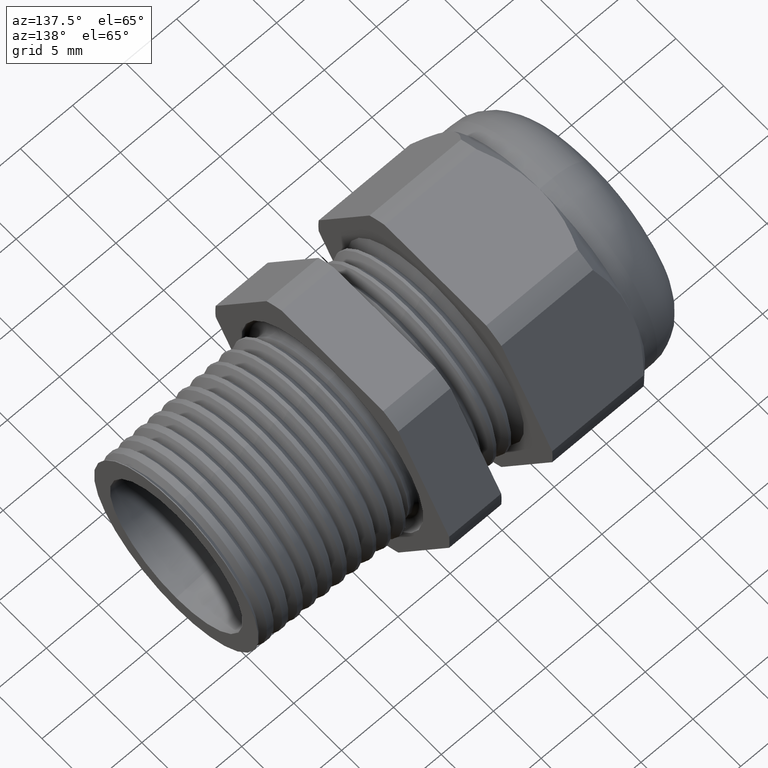
[diagram: clean part render]
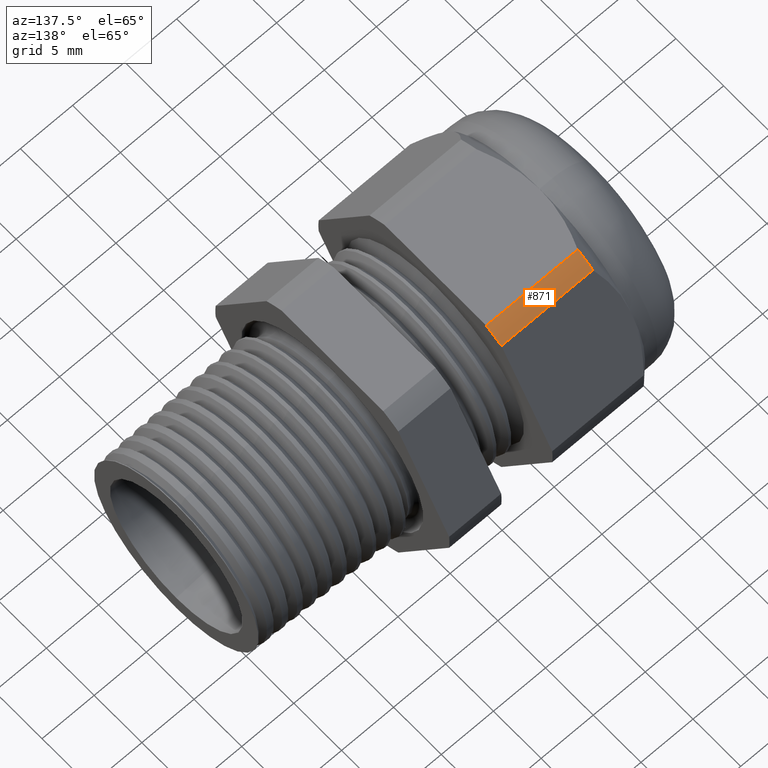
[diagram: same view with one face highlighted and labeled with its STEP entity id]
A machine part, auxiliary view. The second image highlights one B-rep face of the part: STEP entity #871.
In plain terms, the highlighted cylindrical surface (partial cylindrical patch) has radius 12.2644 mm, axis along (-1, 0, 0).
Its self-contained STEP definition (entity closure, byte-faithful):
#7 = EDGE_CURVE ( 'NONE', #874, #887, #1309, .T. ) ;
#871 = ADVANCED_FACE ( 'NONE', ( #2901 ), #2899, .T. ) ;
#872 = ORIENTED_EDGE ( 'NONE', *, *, #873, .T. ) ;
#873 = EDGE_CURVE ( 'NONE', #874, #875, #2900, .T. ) ;
#874 = VERTEX_POINT ( 'NONE', #2891 ) ;
#875 = VERTEX_POINT ( 'NONE', #2890 ) ;
#876 = EDGE_LOOP ( 'NONE', ( #872, #4054, #4055, #4053 ) ) ;
#886 = EDGE_CURVE ( 'NONE', #887, #888, #2938, .T. ) ;
#887 = VERTEX_POINT ( 'NONE', #2934 ) ;
#888 = VERTEX_POINT ( 'NONE', #2933 ) ;
#1305 = DIRECTION ( 'NONE',  ( 0.0000000000000000000, 0.0000000000000000000, -1.000000000000000000 ) ) ;
#1306 = DIRECTION ( 'NONE',  ( 1.000000000000000000, 0.0000000000000000000, 0.0000000000000000000 ) ) ;
#1307 = CARTESIAN_POINT ( 'NONE',  ( -0.6994488188976376600, 0.0000000000000000000, 0.0000000000000000000 ) ) ;
#1308 = AXIS2_PLACEMENT_3D ( 'NONE', #1307, #1306, #1305 ) ;
#1309 = CIRCLE ( 'NONE', #1308, 0.4828500000000000000 ) ;
#2890 = CARTESIAN_POINT ( 'NONE',  ( -1.045299606299212800, 0.2719366022533514800, 0.3989919884595460900 ) ) ;
#2891 = CARTESIAN_POINT ( 'NONE',  ( -0.6994488188976376600, 0.2719366022533514200, 0.3989919884595460900 ) ) ;
#2892 = DIRECTION ( 'NONE',  ( -1.000000000000000000, 0.0000000000000000000, 0.0000000000000000000 ) ) ;
#2893 = VECTOR ( 'NONE', #2892, 39.37007874015748100 ) ;
#2894 = CARTESIAN_POINT ( 'NONE',  ( 0.2800000000000000300, 0.2719366022533514200, 0.3989919884595460900 ) ) ;
#2895 = DIRECTION ( 'NONE',  ( 0.0000000000000000000, 0.0000000000000000000, 1.000000000000000000 ) ) ;
#2896 = DIRECTION ( 'NONE',  ( -1.000000000000000000, 0.0000000000000000000, 0.0000000000000000000 ) ) ;
#2897 = CARTESIAN_POINT ( 'NONE',  ( 0.2800000000000000300, 0.0000000000000000000, 0.0000000000000000000 ) ) ;
#2898 = AXIS2_PLACEMENT_3D ( 'NONE', #2897, #2896, #2895 ) ;
#2899 = CYLINDRICAL_SURFACE ( 'NONE', #2898, 0.4828500000000000000 ) ;
#2900 = LINE ( 'NONE', #2894, #2893 ) ;
#2901 = FACE_OUTER_BOUND ( 'NONE', #876, .T. ) ;
#2933 = CARTESIAN_POINT ( 'NONE',  ( -1.045299606299212800, 0.2095688967857591300, 0.4349999999999998900 ) ) ;
#2934 = CARTESIAN_POINT ( 'NONE',  ( -0.6994488188976376600, 0.2095688967857591300, 0.4349999999999998900 ) ) ;
#2935 = DIRECTION ( 'NONE',  ( -1.000000000000000000, 0.0000000000000000000, 0.0000000000000000000 ) ) ;
#2936 = VECTOR ( 'NONE', #2935, 39.37007874015748100 ) ;
#2937 = CARTESIAN_POINT ( 'NONE',  ( 0.2800000000000000300, 0.2095688967857591300, 0.4349999999999998900 ) ) ;
#2938 = LINE ( 'NONE', #2937, #2936 ) ;
#3769 = DIRECTION ( 'NONE',  ( 0.0000000000000000000, 0.0000000000000000000, -1.000000000000000000 ) ) ;
#3770 = DIRECTION ( 'NONE',  ( 1.000000000000000000, 0.0000000000000000000, 0.0000000000000000000 ) ) ;
#3771 = CARTESIAN_POINT ( 'NONE',  ( -1.045299606299212800, 0.0000000000000000000, 0.0000000000000000000 ) ) ;
#3772 = AXIS2_PLACEMENT_3D ( 'NONE', #3771, #3770, #3769 ) ;
#3773 = CIRCLE ( 'NONE', #3772, 0.4828500000000000000 ) ;
#4052 = EDGE_CURVE ( 'NONE', #875, #888, #3773, .T. ) ;
#4053 = ORIENTED_EDGE ( 'NONE', *, *, #7, .F. ) ;
#4054 = ORIENTED_EDGE ( 'NONE', *, *, #4052, .T. ) ;
#4055 = ORIENTED_EDGE ( 'NONE', *, *, #886, .F. ) ;